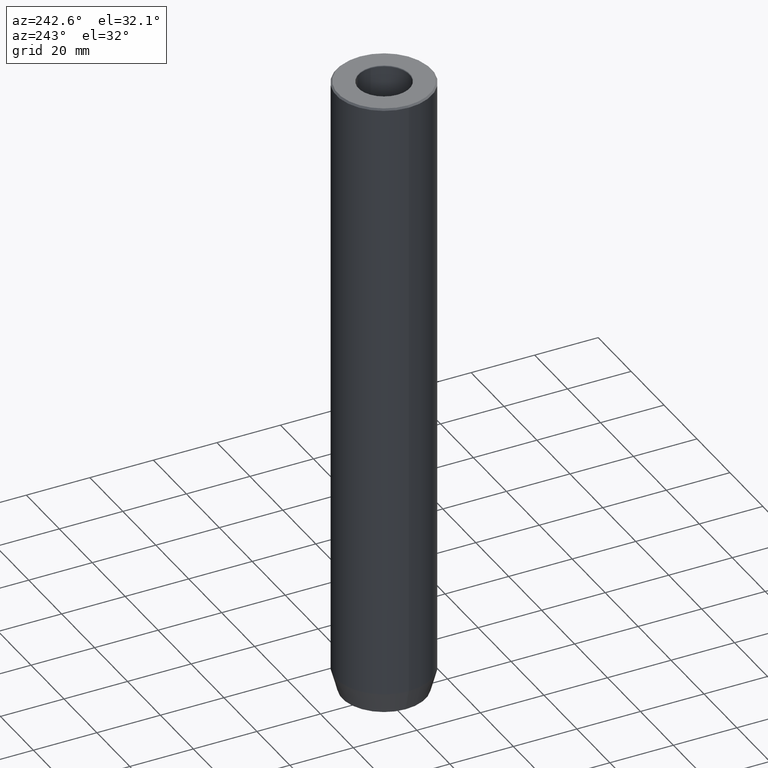
[diagram: clean part render]
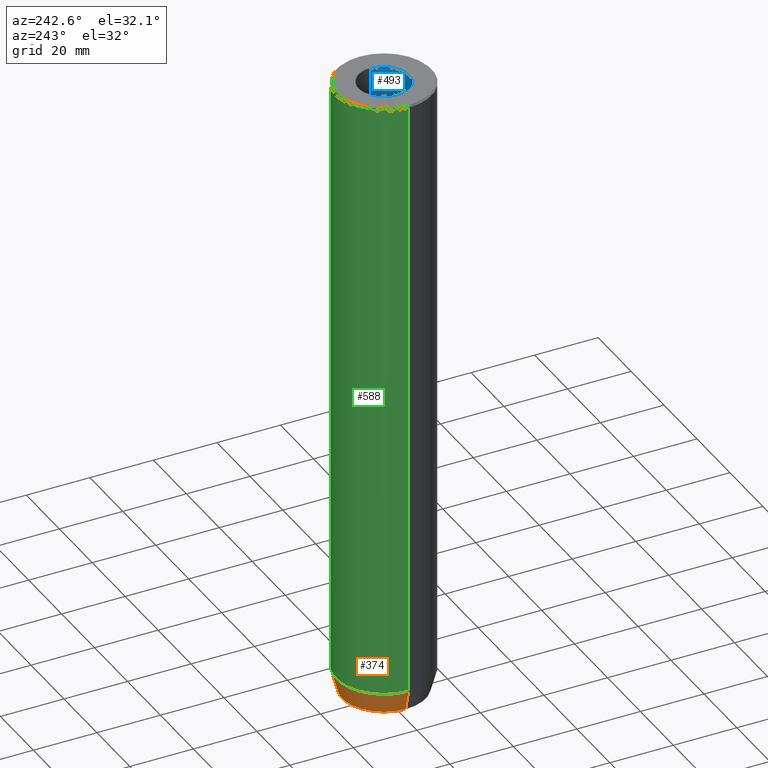
[diagram: same view with three faces highlighted in distinct colors, each labeled with its STEP entity id]
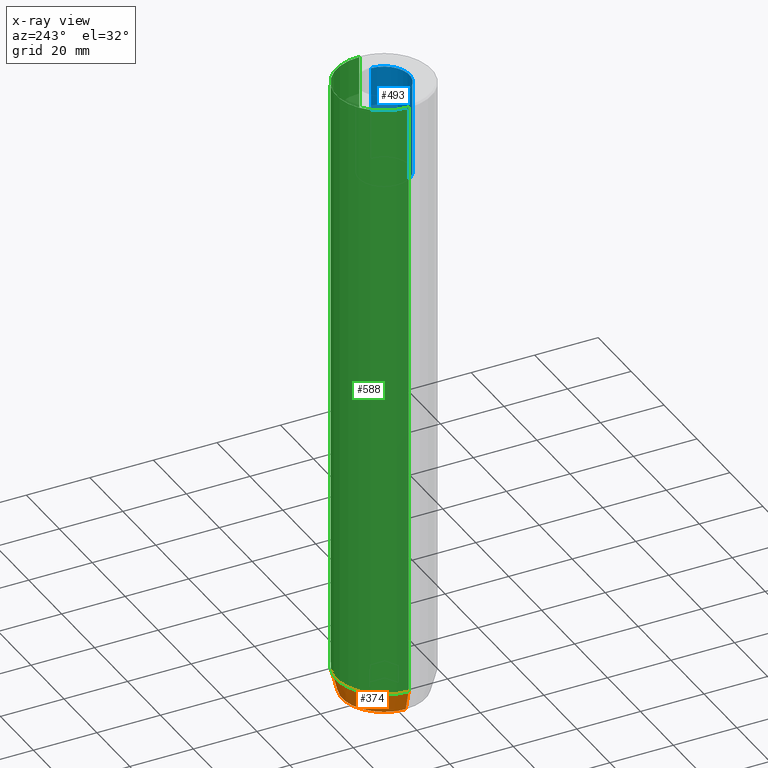
[diagram: x-ray of the same camera — body ghosted, the three highlighted faces saturated]
A machine part, auxiliary view with three faces highlighted in distinct colors.
The next image is the same camera in x-ray (body ghosted, the three faces saturated) — at least one of them is partly hidden behind the body in this view.
Their STEP definitions:

[orange] entity #374 — the highlighted conical surface has half-angle 15 deg.
#23 = ORIENTED_EDGE ( 'NONE', *, *, #403, .F. ) ;
#60 = VERTEX_POINT ( 'NONE', #394 ) ;
#75 = ORIENTED_EDGE ( 'NONE', *, *, #185, .T. ) ;
#82 = ORIENTED_EDGE ( 'NONE', *, *, #543, .T. ) ;
#88 = CARTESIAN_POINT ( 'NONE',  ( 0.000000000000000000, 0.000000000000000000, -193.0000000000000000 ) ) ;
#105 = CIRCLE ( 'NONE', #368, 13.12435565298213369 ) ;
#109 = LINE ( 'NONE', #361, #123 ) ;
#121 = DIRECTION ( 'NONE',  ( 1.000000000000000000, 0.000000000000000000, 0.000000000000000000 ) ) ;
#123 = VECTOR ( 'NONE', #599, 1000.000000000000000 ) ;
#150 = LINE ( 'NONE', #304, #553 ) ;
#167 = VERTEX_POINT ( 'NONE', #452 ) ;
#180 = VERTEX_POINT ( 'NONE', #550 ) ;
#185 = EDGE_CURVE ( 'NONE', #167, #318, #105, .T. ) ;
#219 = CARTESIAN_POINT ( 'NONE',  ( -13.12435565298213369, 1.722120106425316888E-15, -200.0000000000000000 ) ) ;
#245 = AXIS2_PLACEMENT_3D ( 'NONE', #535, #449, #343 ) ;
#248 = CARTESIAN_POINT ( 'NONE',  ( 0.000000000000000000, 0.000000000000000000, -200.0000000000000000 ) ) ;
#268 = DIRECTION ( 'NONE',  ( 1.000000000000000000, 0.000000000000000000, 0.000000000000000000 ) ) ;
#303 = CIRCLE ( 'NONE', #245, 15.00000000000000000 ) ;
#304 = CARTESIAN_POINT ( 'NONE',  ( -15.00000000000000000, 1.836970198721029589E-15, -193.0000000000000000 ) ) ;
#318 = VERTEX_POINT ( 'NONE', #219 ) ;
#331 = FACE_OUTER_BOUND ( 'NONE', #387, .T. ) ;
#343 = DIRECTION ( 'NONE',  ( 1.000000000000000000, 0.000000000000000000, 0.000000000000000000 ) ) ;
#361 = CARTESIAN_POINT ( 'NONE',  ( 15.00000000000000000, 0.000000000000000000, -193.0000000000000000 ) ) ;
#368 = AXIS2_PLACEMENT_3D ( 'NONE', #248, #548, #121 ) ;
#374 = ADVANCED_FACE ( 'NONE', ( #331 ), #603, .T. ) ;
#387 = EDGE_LOOP ( 'NONE', ( #75, #82, #23, #594 ) ) ;
#394 = CARTESIAN_POINT ( 'NONE',  ( 15.00000000000000000, 0.000000000000000000, -193.0000000000000000 ) ) ;
#403 = EDGE_CURVE ( 'NONE', #60, #180, #303, .T. ) ;
#424 = DIRECTION ( 'NONE',  ( -0.000000000000000000, -0.000000000000000000, 1.000000000000000000 ) ) ;
#435 = AXIS2_PLACEMENT_3D ( 'NONE', #88, #424, #268 ) ;
#449 = DIRECTION ( 'NONE',  ( -0.000000000000000000, -0.000000000000000000, 1.000000000000000000 ) ) ;
#452 = CARTESIAN_POINT ( 'NONE',  ( 13.12435565298213369, 0.000000000000000000, -200.0000000000000000 ) ) ;
#499 = DIRECTION ( 'NONE',  ( -0.2588190451025213501, 3.169619151431772337E-17, 0.9659258262890680902 ) ) ;
#535 = CARTESIAN_POINT ( 'NONE',  ( 0.000000000000000000, 0.000000000000000000, -193.0000000000000000 ) ) ;
#543 = EDGE_CURVE ( 'NONE', #318, #180, #150, .T. ) ;
#548 = DIRECTION ( 'NONE',  ( -0.000000000000000000, -0.000000000000000000, 1.000000000000000000 ) ) ;
#550 = CARTESIAN_POINT ( 'NONE',  ( -15.00000000000000000, 1.836970198721029589E-15, -193.0000000000000000 ) ) ;
#553 = VECTOR ( 'NONE', #499, 1000.000000000000000 ) ;
#594 = ORIENTED_EDGE ( 'NONE', *, *, #625, .F. ) ;
#599 = DIRECTION ( 'NONE',  ( 0.2588190451025213501, 0.000000000000000000, 0.9659258262890680902 ) ) ;
#603 = CONICAL_SURFACE ( 'NONE', #435, 15.00000000000000000, 0.2617993877991500740 ) ;
#625 = EDGE_CURVE ( 'NONE', #167, #60, #109, .T. ) ;

[blue] entity #493 — the highlighted cylindrical surface (edge-blend (fillet) strip) has radius 8 mm, axis along (-0, -0, 1).
#38 = ORIENTED_EDGE ( 'NONE', *, *, #84, .T. ) ;
#41 = VERTEX_POINT ( 'NONE', #486 ) ;
#43 = VECTOR ( 'NONE', #67, 1000.000000000000000 ) ;
#44 = DIRECTION ( 'NONE',  ( -0.000000000000000000, -0.000000000000000000, 1.000000000000000000 ) ) ;
#47 = DIRECTION ( 'NONE',  ( 1.000000000000000000, 0.000000000000000000, 0.000000000000000000 ) ) ;
#57 = EDGE_CURVE ( 'NONE', #41, #359, #333, .T. ) ;
#63 = CARTESIAN_POINT ( 'NONE',  ( -7.999999999999996447, 9.797174393178821713E-16, -0.2999999999999999889 ) ) ;
#67 = DIRECTION ( 'NONE',  ( -0.000000000000000000, -0.000000000000000000, 1.000000000000000000 ) ) ;
#73 = CARTESIAN_POINT ( 'NONE',  ( 0.000000000000000000, 0.000000000000000000, -0.2999999999999999889 ) ) ;
#84 = EDGE_CURVE ( 'NONE', #608, #422, #91, .T. ) ;
#91 = CIRCLE ( 'NONE', #342, 7.999999999999996447 ) ;
#125 = ORIENTED_EDGE ( 'NONE', *, *, #604, .F. ) ;
#139 = AXIS2_PLACEMENT_3D ( 'NONE', #337, #539, #47 ) ;
#151 = DIRECTION ( 'NONE',  ( -0.000000000000000000, -0.000000000000000000, 1.000000000000000000 ) ) ;
#171 = ORIENTED_EDGE ( 'NONE', *, *, #57, .F. ) ;
#174 = ORIENTED_EDGE ( 'NONE', *, *, #350, .T. ) ;
#200 = FACE_OUTER_BOUND ( 'NONE', #339, .T. ) ;
#208 = CARTESIAN_POINT ( 'NONE',  ( 7.999999999999996447, 0.000000000000000000, 0.000000000000000000 ) ) ;
#238 = DIRECTION ( 'NONE',  ( 1.000000000000000000, 0.000000000000000000, 0.000000000000000000 ) ) ;
#316 = DIRECTION ( 'NONE',  ( -0.000000000000000000, -0.000000000000000000, 1.000000000000000000 ) ) ;
#333 = CIRCLE ( 'NONE', #139, 7.999999999999994671 ) ;
#337 = CARTESIAN_POINT ( 'NONE',  ( 0.000000000000000000, 0.000000000000000000, -30.00000000000000000 ) ) ;
#339 = EDGE_LOOP ( 'NONE', ( #171, #174, #38, #125 ) ) ;
#342 = AXIS2_PLACEMENT_3D ( 'NONE', #73, #151, #607 ) ;
#350 = EDGE_CURVE ( 'NONE', #41, #608, #613, .T. ) ;
#359 = VERTEX_POINT ( 'NONE', #579 ) ;
#386 = CARTESIAN_POINT ( 'NONE',  ( -7.999999999999996447, 9.797174393178821713E-16, 0.000000000000000000 ) ) ;
#390 = CYLINDRICAL_SURFACE ( 'NONE', #629, 7.999999999999996447 ) ;
#392 = VECTOR ( 'NONE', #316, 1000.000000000000000 ) ;
#404 = CARTESIAN_POINT ( 'NONE',  ( 0.000000000000000000, 0.000000000000000000, 0.000000000000000000 ) ) ;
#422 = VERTEX_POINT ( 'NONE', #483 ) ;
#483 = CARTESIAN_POINT ( 'NONE',  ( 7.999999999999996447, 0.000000000000000000, -0.2999999999999999889 ) ) ;
#486 = CARTESIAN_POINT ( 'NONE',  ( -7.999999999999994671, 9.797174393178819741E-16, -30.00000000000000000 ) ) ;
#493 = ADVANCED_FACE ( 'NONE', ( #200 ), #390, .F. ) ;
#539 = DIRECTION ( 'NONE',  ( -0.000000000000000000, -0.000000000000000000, 1.000000000000000000 ) ) ;
#579 = CARTESIAN_POINT ( 'NONE',  ( 7.999999999999994671, 0.000000000000000000, -30.00000000000000000 ) ) ;
#601 = LINE ( 'NONE', #208, #43 ) ;
#604 = EDGE_CURVE ( 'NONE', #359, #422, #601, .T. ) ;
#607 = DIRECTION ( 'NONE',  ( 1.000000000000000000, 0.000000000000000000, 0.000000000000000000 ) ) ;
#608 = VERTEX_POINT ( 'NONE', #63 ) ;
#613 = LINE ( 'NONE', #386, #392 ) ;
#629 = AXIS2_PLACEMENT_3D ( 'NONE', #404, #44, #238 ) ;

[green] entity #588 — the highlighted cylindrical surface (partial cylindrical patch) has radius 15 mm, axis along (-0, -0, 1).
#6 = CARTESIAN_POINT ( 'NONE',  ( 0.000000000000000000, 0.000000000000000000, -0.5000000000000108802 ) ) ;
#9 = DIRECTION ( 'NONE',  ( -0.000000000000000000, -0.000000000000000000, 1.000000000000000000 ) ) ;
#16 = EDGE_CURVE ( 'NONE', #60, #363, #444, .T. ) ;
#54 = ORIENTED_EDGE ( 'NONE', *, *, #420, .T. ) ;
#60 = VERTEX_POINT ( 'NONE', #394 ) ;
#94 = AXIS2_PLACEMENT_3D ( 'NONE', #6, #201, #405 ) ;
#97 = CARTESIAN_POINT ( 'NONE',  ( 15.00000000000000000, 0.000000000000000000, 0.000000000000000000 ) ) ;
#124 = AXIS2_PLACEMENT_3D ( 'NONE', #606, #9, #354 ) ;
#143 = DIRECTION ( 'NONE',  ( -0.000000000000000000, -0.000000000000000000, 1.000000000000000000 ) ) ;
#157 = CYLINDRICAL_SURFACE ( 'NONE', #124, 15.00000000000000000 ) ;
#178 = CARTESIAN_POINT ( 'NONE',  ( 15.00000000000000000, 0.000000000000000000, -0.5000000000000108802 ) ) ;
#180 = VERTEX_POINT ( 'NONE', #550 ) ;
#189 = CARTESIAN_POINT ( 'NONE',  ( -15.00000000000000000, 1.836970198721029589E-15, 0.000000000000000000 ) ) ;
#201 = DIRECTION ( 'NONE',  ( 0.000000000000000000, 0.000000000000000000, -1.000000000000000000 ) ) ;
#212 = FACE_OUTER_BOUND ( 'NONE', #459, .T. ) ;
#237 = EDGE_CURVE ( 'NONE', #402, #363, #311, .T. ) ;
#245 = AXIS2_PLACEMENT_3D ( 'NONE', #535, #449, #343 ) ;
#287 = DIRECTION ( 'NONE',  ( -0.000000000000000000, -0.000000000000000000, 1.000000000000000000 ) ) ;
#294 = VECTOR ( 'NONE', #287, 1000.000000000000000 ) ;
#303 = CIRCLE ( 'NONE', #245, 15.00000000000000000 ) ;
#311 = CIRCLE ( 'NONE', #94, 15.00000000000000000 ) ;
#336 = LINE ( 'NONE', #189, #294 ) ;
#343 = DIRECTION ( 'NONE',  ( 1.000000000000000000, 0.000000000000000000, 0.000000000000000000 ) ) ;
#352 = ORIENTED_EDGE ( 'NONE', *, *, #403, .T. ) ;
#354 = DIRECTION ( 'NONE',  ( 1.000000000000000000, 0.000000000000000000, 0.000000000000000000 ) ) ;
#363 = VERTEX_POINT ( 'NONE', #178 ) ;
#375 = ORIENTED_EDGE ( 'NONE', *, *, #237, .T. ) ;
#394 = CARTESIAN_POINT ( 'NONE',  ( 15.00000000000000000, 0.000000000000000000, -193.0000000000000000 ) ) ;
#400 = VECTOR ( 'NONE', #143, 1000.000000000000000 ) ;
#402 = VERTEX_POINT ( 'NONE', #492 ) ;
#403 = EDGE_CURVE ( 'NONE', #60, #180, #303, .T. ) ;
#405 = DIRECTION ( 'NONE',  ( 1.000000000000000000, 0.000000000000000000, 0.000000000000000000 ) ) ;
#420 = EDGE_CURVE ( 'NONE', #180, #402, #336, .T. ) ;
#444 = LINE ( 'NONE', #97, #400 ) ;
#449 = DIRECTION ( 'NONE',  ( -0.000000000000000000, -0.000000000000000000, 1.000000000000000000 ) ) ;
#459 = EDGE_LOOP ( 'NONE', ( #352, #54, #375, #583 ) ) ;
#492 = CARTESIAN_POINT ( 'NONE',  ( -15.00000000000000000, 1.836970198721029589E-15, -0.5000000000000108802 ) ) ;
#535 = CARTESIAN_POINT ( 'NONE',  ( 0.000000000000000000, 0.000000000000000000, -193.0000000000000000 ) ) ;
#550 = CARTESIAN_POINT ( 'NONE',  ( -15.00000000000000000, 1.836970198721029589E-15, -193.0000000000000000 ) ) ;
#583 = ORIENTED_EDGE ( 'NONE', *, *, #16, .F. ) ;
#588 = ADVANCED_FACE ( 'NONE', ( #212 ), #157, .T. ) ;
#606 = CARTESIAN_POINT ( 'NONE',  ( 0.000000000000000000, 0.000000000000000000, 0.000000000000000000 ) ) ;